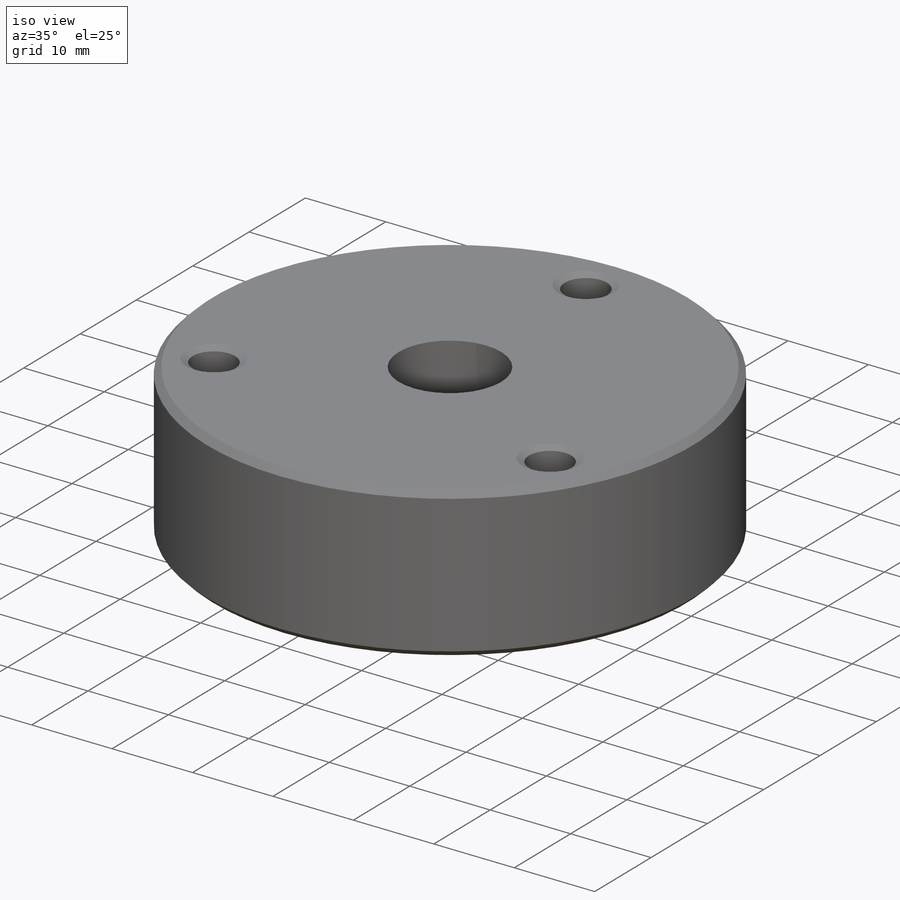
[diagram: iso view]
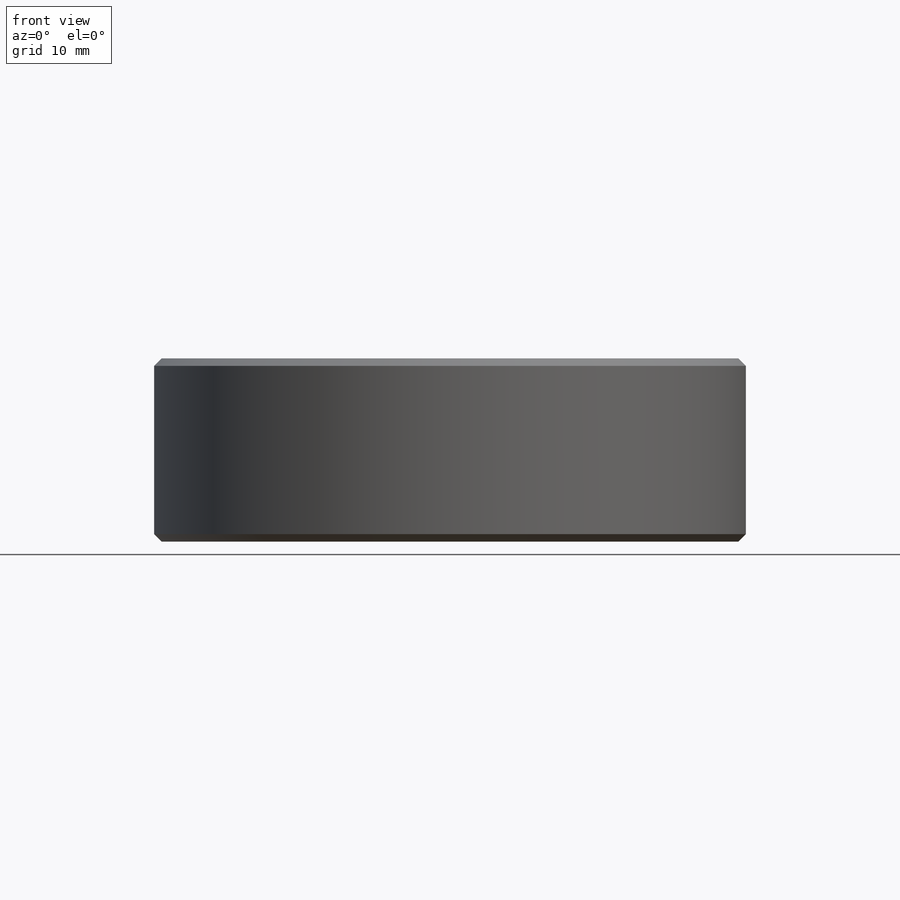
[diagram: front view]
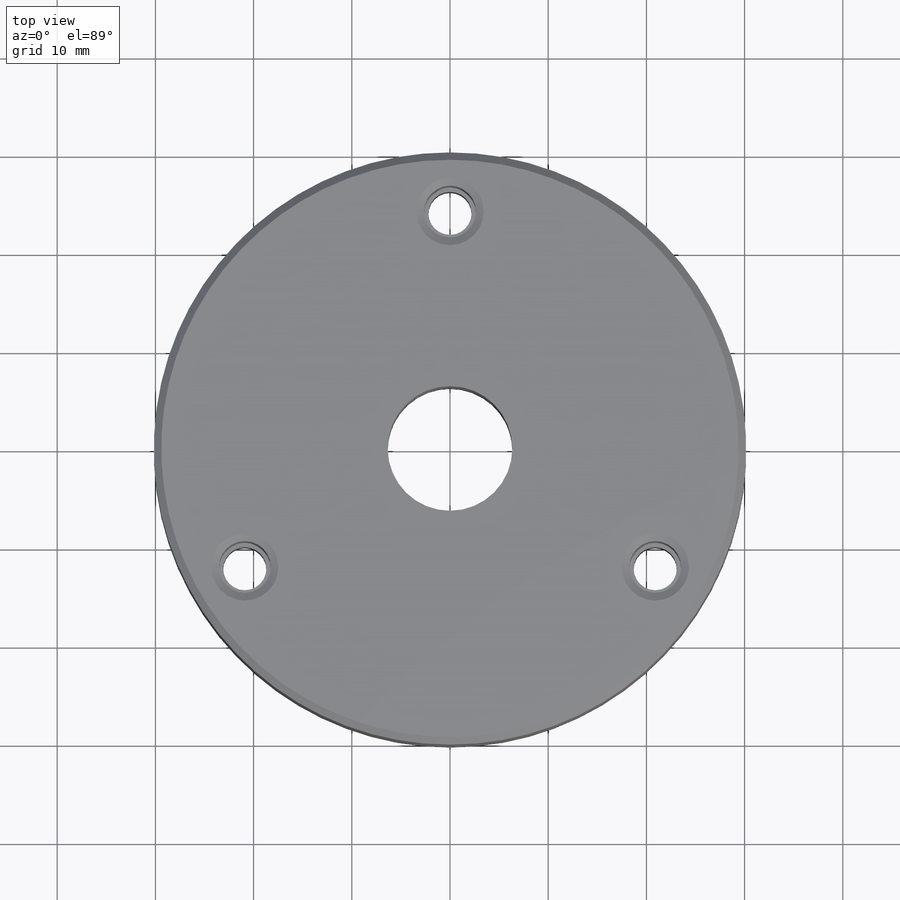
[diagram: top view]
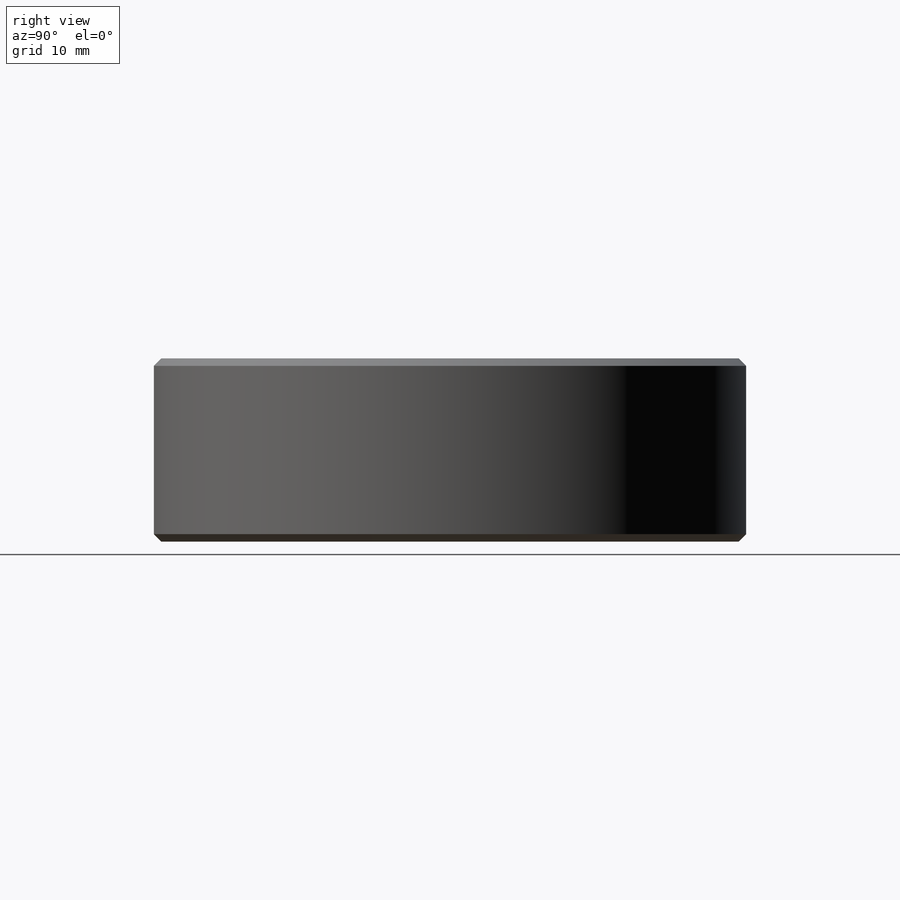
[diagram: right view]
SOLIDWORKS PART (.sldprt)
format: sldprt  version: not decoded by parser v0  size: 284,160 bytes
history: native  units: mm
features: pattern_circular x22, sketch x7, hole x3, material x1, extrude x1, chamfer x1 (+14 scaffold rows collapsed)
feature tree (49):
  scaffold x14  (default folders/planes/origin — collapsed)
  material  "6061-T6 Al"
  sketch  "Sketch1"  dims[D1=60.325mm]
  extrude  "Extrude1"  Depth=18.669mm
  hole  "Tapped Hole for #8-32 Helicoil1"  Diameter=4.3942mm Depth=18.669mm
  sketch  "Sketch3"  dims[D1=48.26mm]
  sketch  "Sketch2"  dims[hole-wizard template sketch: 42 standard entries collapsed; hole parameters kept: c12.Thru Tap Drill Depth=18.669mm c12.Thread Major Dia.=~5.27558mm c12.Thread Depth=10.3632mm c12.Near C'Sink Dia.=6.858mm c12.D6=~4.399409mm c12.Near C'Sink Angle=120.0deg]
  pattern_circular  "CirPattern1"  Count=3 Angle=360deg
  hole  "1/2 (0.5) Diameter Hole1"  Diameter=12.69746mm Depth=18.669mm
  sketch  "Sketch6"
  sketch  "Sketch7"  dims[hole-wizard template sketch: 54 standard entries collapsed; hole parameters kept: c17.Thru Hole Dia.=~12.69746mm c17.Thru Hole Depth=18.669mm c17.Near C'Sink Dia.=14.224mm c17.D4=~3.666174mm c17.Near C'Sink Angle=90.0deg]
  chamfer  "Chamfer1"  Distance=0.762mm Angle=45deg
  hole  "1/2 (0.5) Diameter Hole2"  Diameter=12.7254mm Depth=3.175mm
  sketch  "Sketch9"
  sketch  "Sketch8"  dims[hole-wizard template sketch: 46 standard entries collapsed; hole parameters kept: c15.Hole Dia.=12.7254mm c15.Hole Depth=3.175mm c15.D3=~14.816244mm c15.Drill Angle=118.0deg c15.algFaceTag=255.0]
  pattern_circular  "algFaceTag-1"  [2 undecoded]
  pattern_circular  "algFaceTag-2"  [2 undecoded]
  pattern_circular  "algFaceTag-3"  [2 undecoded]
  pattern_circular  "algFaceTag-4"  [2 undecoded]
  pattern_circular  "algFaceTag-5"  [2 undecoded]
  pattern_circular  "algFaceTag-6"  [2 undecoded]
  pattern_circular  "algFaceTag-7"  [2 undecoded]
  pattern_circular  "algFaceTag-8"  [2 undecoded]
  pattern_circular  "algFaceTag-9"  [2 undecoded]
  pattern_circular  "algFaceTag-10"  [2 undecoded]
  pattern_circular  "algFaceTag-11"  [2 undecoded]
  pattern_circular  "algFaceTag-12"  [2 undecoded]
  pattern_circular  "algFaceTag-13"  [2 undecoded]
  pattern_circular  "algFaceTag-14"  [2 undecoded]
  pattern_circular  "algFaceTag-15"  [2 undecoded]
  pattern_circular  "algFaceTag-16"  [2 undecoded]
  pattern_circular  "algFaceTag-17"  [2 undecoded]
  pattern_circular  "algFaceTag-18"  [2 undecoded]
  pattern_circular  "algFaceTag-19"  [2 undecoded]
  pattern_circular  "algFaceTag-20"  [2 undecoded]
  pattern_circular  "algFaceTag-21"  [2 undecoded]
decode coverage: 11 of 34 modeling features carry decoded parameters
note: ~ marks probable driven/reference dimensions
note: 42 parameter values undecoded
note: suppression state not decoded; provenance and decode notes live in map.json
